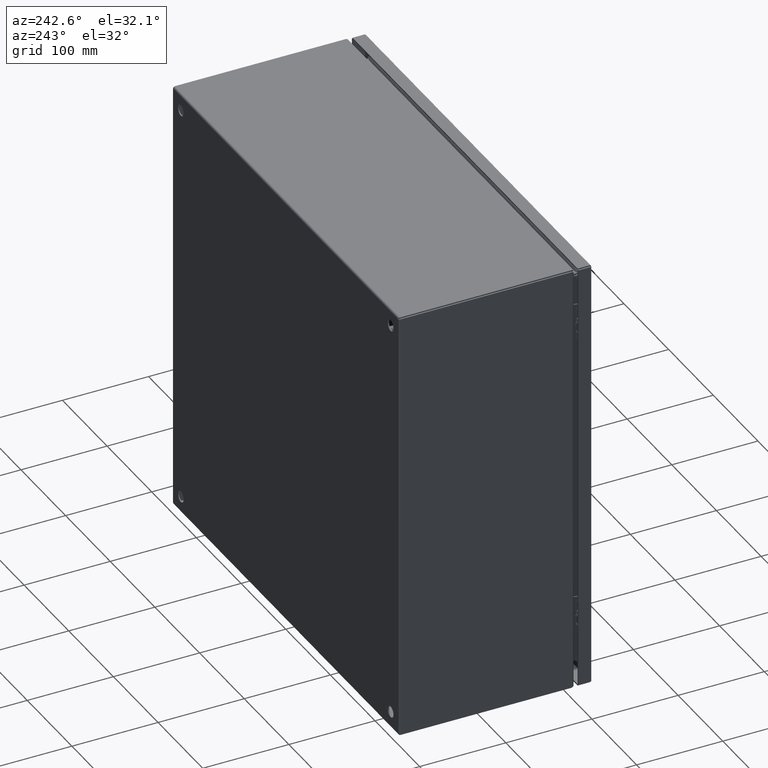
[diagram: clean part render]
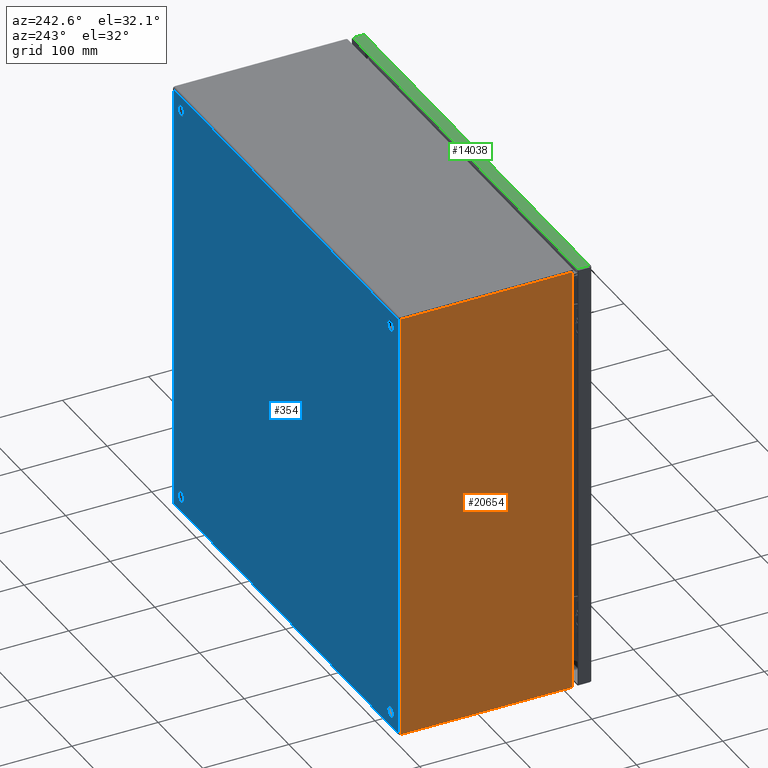
[diagram: same view with three faces highlighted in distinct colors, each labeled with its STEP entity id]
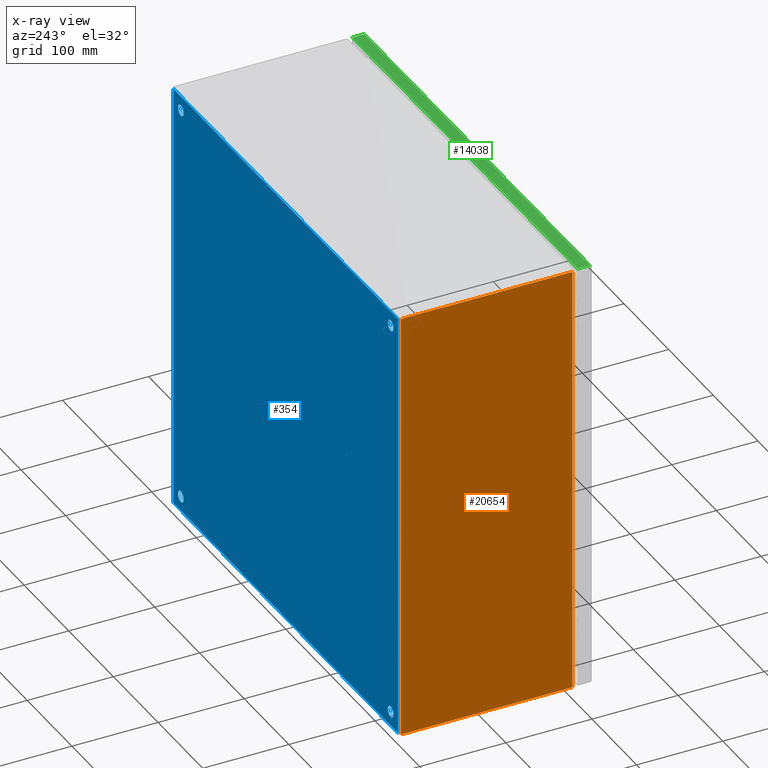
[diagram: x-ray of the same camera — body ghosted, the three highlighted faces saturated]
A machine part, auxiliary view with three faces highlighted in distinct colors.
The next image is the same camera in x-ray (body ghosted, the three faces saturated) — at least one of them is partly hidden behind the body in this view.
Their STEP definitions:

[orange] entity #20654 — the highlighted planar face has unit normal (1, -0, -0).
#82 = VECTOR ( 'NONE', #26476, 39.37007874015748143 ) ;
#808 = CARTESIAN_POINT ( 'NONE',  ( -10.00000000000000000, -0.05700000000000197270, 69.44150000000000489 ) ) ;
#1100 = ORIENTED_EDGE ( 'NONE', *, *, #4686, .F. ) ;
#1740 = CARTESIAN_POINT ( 'NONE',  ( -10.00000000000000178, -0.05700000000000197270, -9.942888644601415749 ) ) ;
#2675 = CARTESIAN_POINT ( 'NONE',  ( -9.999999999999998224, -0.08600000000000099232, 9.942888644601380221 ) ) ;
#2711 = CARTESIAN_POINT ( 'NONE',  ( -10.00000000000000000, -7.852421903868839870, -9.692888644601419301 ) ) ;
#4686 = EDGE_CURVE ( 'NONE', #7322, #31267, #16633, .T. ) ;
#4792 = DIRECTION ( 'NONE',  ( 2.771339582717989839E-16, 1.000000000000000000, 0.0000000000000000000 ) ) ;
#5652 = CARTESIAN_POINT ( 'NONE',  ( -10.00000000000000178, -7.914000000000000590, 69.44150000000000489 ) ) ;
#5762 = FACE_OUTER_BOUND ( 'NONE', #22858, .T. ) ;
#5946 = ORIENTED_EDGE ( 'NONE', *, *, #23322, .F. ) ;
#6816 = CARTESIAN_POINT ( 'NONE',  ( -10.00000000000000000, -7.852421903868828323, 9.942888644601397985 ) ) ;
#6991 = DIRECTION ( 'NONE',  ( 0.0000000000000000000, 1.000000000000000000, 0.0000000000000000000 ) ) ;
#7322 = VERTEX_POINT ( 'NONE', #16335 ) ;
#7592 = DIRECTION ( 'NONE',  ( 1.000000000000000000, -2.771339582717989839E-16, -1.573611165464029883E-17 ) ) ;
#8126 = CIRCLE ( 'NONE', #35520, 0.2499999999999998057 ) ;
#9599 = CARTESIAN_POINT ( 'NONE',  ( -10.00000000000000000, -0.05700000000000197270, 9.942888644601380221 ) ) ;
#9745 = AXIS2_PLACEMENT_3D ( 'NONE', #808, #7592, #16774 ) ;
#9856 = DIRECTION ( 'NONE',  ( 1.000000000000000000, -3.713031427099139786E-16, -1.573611165464029883E-17 ) ) ;
#13717 = PLANE ( 'NONE',  #9745 ) ;
#14278 = LINE ( 'NONE', #23259, #17930 ) ;
#16141 = VERTEX_POINT ( 'NONE', #26493 ) ;
#16335 = CARTESIAN_POINT ( 'NONE',  ( -10.00000000000000000, -7.852421903868830100, -9.942888644601397985 ) ) ;
#16633 = LINE ( 'NONE', #1740, #25231 ) ;
#16774 = DIRECTION ( 'NONE',  ( 2.771339582717989839E-16, 1.000000000000000000, 0.0000000000000000000 ) ) ;
#17322 = LINE ( 'NONE', #5652, #82 ) ;
#17930 = VECTOR ( 'NONE', #28775, 39.37007874015748143 ) ;
#18398 = LINE ( 'NONE', #9599, #25006 ) ;
#18622 = EDGE_CURVE ( 'NONE', #27066, #33191, #35905, .T. ) ;
#19903 = DIRECTION ( 'NONE',  ( 0.0000000000000000000, 1.000000000000000000, 0.0000000000000000000 ) ) ;
#20654 = ADVANCED_FACE ( 'NONE', ( #5762 ), #13717, .F. ) ;
#22858 = EDGE_LOOP ( 'NONE', ( #33914, #36446, #34629, #1100, #35885, #5946 ) ) ;
#23152 = DIRECTION ( 'NONE',  ( 1.000000000000000000, -3.713031427099139786E-16, -1.573611165464029883E-17 ) ) ;
#23259 = CARTESIAN_POINT ( 'NONE',  ( -9.999999999999998224, -0.08600000000000117273, -9.913999999999999702 ) ) ;
#23322 = EDGE_CURVE ( 'NONE', #33191, #16141, #17322, .T. ) ;
#25006 = VECTOR ( 'NONE', #30029, 39.37007874015748143 ) ;
#25231 = VECTOR ( 'NONE', #4792, 39.37007874015748143 ) ;
#26476 = DIRECTION ( 'NONE',  ( -1.573611165464029883E-17, 4.361010910657453997E-33, -1.000000000000000000 ) ) ;
#26493 = CARTESIAN_POINT ( 'NONE',  ( -10.00000000000000000, -7.914000000000002366, -9.935186267530042414 ) ) ;
#27066 = VERTEX_POINT ( 'NONE', #6816 ) ;
#27259 = CARTESIAN_POINT ( 'NONE',  ( -10.00000000000000000, -7.852421903868839870, 9.692888644601415749 ) ) ;
#27363 = EDGE_CURVE ( 'NONE', #16141, #7322, #8126, .T. ) ;
#28038 = AXIS2_PLACEMENT_3D ( 'NONE', #27259, #9856, #6991 ) ;
#28466 = CARTESIAN_POINT ( 'NONE',  ( -10.00000000000000000, -0.08600000000000000699, -9.942888644601415749 ) ) ;
#28758 = VERTEX_POINT ( 'NONE', #2675 ) ;
#28775 = DIRECTION ( 'NONE',  ( 0.0000000000000000000, 0.0000000000000000000, 1.000000000000000000 ) ) ;
#29598 = CARTESIAN_POINT ( 'NONE',  ( -10.00000000000000000, -7.914000000000000590, 9.935186267530042414 ) ) ;
#30029 = DIRECTION ( 'NONE',  ( -2.771339582717989839E-16, -1.000000000000000000, -0.0000000000000000000 ) ) ;
#31267 = VERTEX_POINT ( 'NONE', #28466 ) ;
#33191 = VERTEX_POINT ( 'NONE', #29598 ) ;
#33914 = ORIENTED_EDGE ( 'NONE', *, *, #18622, .F. ) ;
#34361 = EDGE_CURVE ( 'NONE', #28758, #27066, #18398, .T. ) ;
#34629 = ORIENTED_EDGE ( 'NONE', *, *, #35003, .F. ) ;
#35003 = EDGE_CURVE ( 'NONE', #31267, #28758, #14278, .T. ) ;
#35520 = AXIS2_PLACEMENT_3D ( 'NONE', #2711, #23152, #19903 ) ;
#35885 = ORIENTED_EDGE ( 'NONE', *, *, #27363, .F. ) ;
#35905 = CIRCLE ( 'NONE', #28038, 0.2499999999999998057 ) ;
#36446 = ORIENTED_EDGE ( 'NONE', *, *, #34361, .F. ) ;

[blue] entity #354 — the highlighted planar face has unit normal (0, -1, 0).
#90 = EDGE_LOOP ( 'NONE', ( #28183, #4549 ) ) ;
#188 = AXIS2_PLACEMENT_3D ( 'NONE', #24199, #12732, #29885 ) ;
#279 = EDGE_LOOP ( 'NONE', ( #34399, #11654, #19417, #22529 ) ) ;
#354 = ADVANCED_FACE ( 'NONE', ( #37236, #5393, #17066, #25114, #2543 ), #14196, .F. ) ;
#463 = AXIS2_PLACEMENT_3D ( 'NONE', #27336, #35861, #17982 ) ;
#508 = CARTESIAN_POINT ( 'NONE',  ( -9.942999999999999616, 0.0000000000000000000, 9.914000000000001478 ) ) ;
#636 = DIRECTION ( 'NONE',  ( 0.0000000000000000000, 0.0000000000000000000, 1.000000000000000000 ) ) ;
#1097 = ORIENTED_EDGE ( 'NONE', *, *, #30971, .F. ) ;
#1381 = CARTESIAN_POINT ( 'NONE',  ( -9.250000000000000000, 0.0000000000000000000, 9.000000000000000000 ) ) ;
#1616 = VERTEX_POINT ( 'NONE', #1381 ) ;
#2543 = FACE_BOUND ( 'NONE', #28124, .T. ) ;
#2830 = EDGE_CURVE ( 'NONE', #8909, #9756, #11760, .T. ) ;
#3713 = CARTESIAN_POINT ( 'NONE',  ( -9.250000000000000000, 0.0000000000000000000, -9.500000000000000000 ) ) ;
#3977 = AXIS2_PLACEMENT_3D ( 'NONE', #26393, #8991, #11121 ) ;
#4189 = DIRECTION ( 'NONE',  ( 0.0000000000000000000, 0.0000000000000000000, 1.000000000000000000 ) ) ;
#4213 = CARTESIAN_POINT ( 'NONE',  ( -9.942999999999999616, 0.0000000000000000000, -9.913999999999999702 ) ) ;
#4549 = ORIENTED_EDGE ( 'NONE', *, *, #8888, .F. ) ;
#4575 = DIRECTION ( 'NONE',  ( 0.0000000000000000000, 1.000000000000000000, 0.0000000000000000000 ) ) ;
#5142 = CARTESIAN_POINT ( 'NONE',  ( 9.914000000000001478, -6.155944433175433938E-16, 9.914000000000001478 ) ) ;
#5393 = FACE_OUTER_BOUND ( 'NONE', #279, .T. ) ;
#5814 = CARTESIAN_POINT ( 'NONE',  ( -9.913999999999999702, 0.0000000000000000000, 9.914000000000001478 ) ) ;
#5945 = CIRCLE ( 'NONE', #6531, 0.2499999999999998057 ) ;
#6531 = AXIS2_PLACEMENT_3D ( 'NONE', #33548, #4575, #4189 ) ;
#6995 = EDGE_CURVE ( 'NONE', #16544, #17304, #32633, .T. ) ;
#7169 = DIRECTION ( 'NONE',  ( 0.0000000000000000000, 1.000000000000000000, 0.0000000000000000000 ) ) ;
#7172 = VERTEX_POINT ( 'NONE', #29878 ) ;
#7339 = ORIENTED_EDGE ( 'NONE', *, *, #2830, .F. ) ;
#7745 = DIRECTION ( 'NONE',  ( 0.0000000000000000000, 0.0000000000000000000, 1.000000000000000000 ) ) ;
#8302 = DIRECTION ( 'NONE',  ( 0.0000000000000000000, 1.000000000000000000, 0.0000000000000000000 ) ) ;
#8350 = VERTEX_POINT ( 'NONE', #34274 ) ;
#8441 = DIRECTION ( 'NONE',  ( 0.0000000000000000000, -1.000000000000000000, 0.0000000000000000000 ) ) ;
#8884 = CARTESIAN_POINT ( 'NONE',  ( 9.250000000000000000, 0.0000000000000000000, -9.250000000000000000 ) ) ;
#8888 = EDGE_CURVE ( 'NONE', #1616, #24556, #10209, .T. ) ;
#8909 = VERTEX_POINT ( 'NONE', #27144 ) ;
#8991 = DIRECTION ( 'NONE',  ( 0.0000000000000000000, 1.000000000000000000, 0.0000000000000000000 ) ) ;
#9039 = EDGE_CURVE ( 'NONE', #13729, #7172, #5945, .T. ) ;
#9081 = AXIS2_PLACEMENT_3D ( 'NONE', #30280, #7169, #27052 ) ;
#9588 = ORIENTED_EDGE ( 'NONE', *, *, #35895, .F. ) ;
#9756 = VERTEX_POINT ( 'NONE', #3713 ) ;
#10209 = CIRCLE ( 'NONE', #463, 0.2499999999999998057 ) ;
#11121 = DIRECTION ( 'NONE',  ( 0.0000000000000000000, 0.0000000000000000000, 1.000000000000000000 ) ) ;
#11654 = ORIENTED_EDGE ( 'NONE', *, *, #36090, .F. ) ;
#11760 = CIRCLE ( 'NONE', #188, 0.2499999999999998057 ) ;
#11818 = ORIENTED_EDGE ( 'NONE', *, *, #9039, .F. ) ;
#11928 = AXIS2_PLACEMENT_3D ( 'NONE', #8884, #34820, #20564 ) ;
#12732 = DIRECTION ( 'NONE',  ( 0.0000000000000000000, 1.000000000000000000, 0.0000000000000000000 ) ) ;
#12805 = VECTOR ( 'NONE', #22662, 39.37007874015748143 ) ;
#12912 = CARTESIAN_POINT ( 'NONE',  ( -9.250000000000000000, 0.0000000000000000000, 9.500000000000000000 ) ) ;
#13004 = EDGE_CURVE ( 'NONE', #8350, #17977, #26938, .T. ) ;
#13123 = CIRCLE ( 'NONE', #3977, 0.2499999999999998057 ) ;
#13729 = VERTEX_POINT ( 'NONE', #14826 ) ;
#14094 = VERTEX_POINT ( 'NONE', #5142 ) ;
#14196 = PLANE ( 'NONE',  #25144 ) ;
#14251 = CARTESIAN_POINT ( 'NONE',  ( 9.914000000000001478, 0.0000000000000000000, -9.942999999999999616 ) ) ;
#14826 = CARTESIAN_POINT ( 'NONE',  ( 9.250000000000000000, 0.0000000000000000000, 9.000000000000000000 ) ) ;
#15530 = DIRECTION ( 'NONE',  ( 0.0000000000000000000, 1.000000000000000000, 0.0000000000000000000 ) ) ;
#16071 = LINE ( 'NONE', #30565, #36232 ) ;
#16332 = EDGE_CURVE ( 'NONE', #24556, #1616, #17651, .T. ) ;
#16544 = VERTEX_POINT ( 'NONE', #26629 ) ;
#16794 = VECTOR ( 'NONE', #22025, 39.37007874015748143 ) ;
#17066 = FACE_BOUND ( 'NONE', #90, .T. ) ;
#17304 = VERTEX_POINT ( 'NONE', #26306 ) ;
#17651 = CIRCLE ( 'NONE', #9081, 0.2499999999999998057 ) ;
#17806 = VERTEX_POINT ( 'NONE', #5814 ) ;
#17977 = VERTEX_POINT ( 'NONE', #27016 ) ;
#17982 = DIRECTION ( 'NONE',  ( 0.0000000000000000000, 0.0000000000000000000, 1.000000000000000000 ) ) ;
#18671 = EDGE_CURVE ( 'NONE', #17977, #14094, #28191, .T. ) ;
#18759 = EDGE_CURVE ( 'NONE', #7172, #13729, #26214, .T. ) ;
#19128 = EDGE_LOOP ( 'NONE', ( #9588, #29533 ) ) ;
#19417 = ORIENTED_EDGE ( 'NONE', *, *, #36569, .F. ) ;
#20564 = DIRECTION ( 'NONE',  ( 0.0000000000000000000, 0.0000000000000000000, 1.000000000000000000 ) ) ;
#22025 = DIRECTION ( 'NONE',  ( -1.000000000000000000, -0.0000000000000000000, -0.0000000000000000000 ) ) ;
#22074 = VECTOR ( 'NONE', #24094, 39.37007874015748143 ) ;
#22529 = ORIENTED_EDGE ( 'NONE', *, *, #18671, .F. ) ;
#22662 = DIRECTION ( 'NONE',  ( -0.0000000000000000000, 0.0000000000000000000, 1.000000000000000000 ) ) ;
#24094 = DIRECTION ( 'NONE',  ( 1.000000000000000000, 0.0000000000000000000, 0.0000000000000000000 ) ) ;
#24199 = CARTESIAN_POINT ( 'NONE',  ( -9.250000000000000000, 0.0000000000000000000, -9.250000000000000000 ) ) ;
#24556 = VERTEX_POINT ( 'NONE', #12912 ) ;
#25114 = FACE_BOUND ( 'NONE', #19128, .T. ) ;
#25144 = AXIS2_PLACEMENT_3D ( 'NONE', #34574, #8441, #33827 ) ;
#26214 = CIRCLE ( 'NONE', #31070, 0.2499999999999998057 ) ;
#26306 = CARTESIAN_POINT ( 'NONE',  ( 9.250000000000000000, 0.0000000000000000000, -9.000000000000000000 ) ) ;
#26393 = CARTESIAN_POINT ( 'NONE',  ( 9.250000000000000000, 0.0000000000000000000, -9.250000000000000000 ) ) ;
#26593 = CARTESIAN_POINT ( 'NONE',  ( -9.250000000000000000, 0.0000000000000000000, -9.250000000000000000 ) ) ;
#26629 = CARTESIAN_POINT ( 'NONE',  ( 9.250000000000000000, 0.0000000000000000000, -9.500000000000000000 ) ) ;
#26840 = LINE ( 'NONE', #508, #16794 ) ;
#26938 = LINE ( 'NONE', #4213, #22074 ) ;
#27016 = CARTESIAN_POINT ( 'NONE',  ( 9.914000000000001478, -6.155944433175433938E-16, -9.913999999999999702 ) ) ;
#27052 = DIRECTION ( 'NONE',  ( 0.0000000000000000000, 0.0000000000000000000, 1.000000000000000000 ) ) ;
#27144 = CARTESIAN_POINT ( 'NONE',  ( -9.250000000000000000, 0.0000000000000000000, -9.000000000000000000 ) ) ;
#27307 = EDGE_LOOP ( 'NONE', ( #7339, #1097 ) ) ;
#27336 = CARTESIAN_POINT ( 'NONE',  ( -9.250000000000000000, 0.0000000000000000000, 9.250000000000000000 ) ) ;
#27930 = AXIS2_PLACEMENT_3D ( 'NONE', #26593, #15530, #636 ) ;
#28124 = EDGE_LOOP ( 'NONE', ( #31792, #11818 ) ) ;
#28183 = ORIENTED_EDGE ( 'NONE', *, *, #16332, .F. ) ;
#28191 = LINE ( 'NONE', #14251, #12805 ) ;
#29533 = ORIENTED_EDGE ( 'NONE', *, *, #6995, .F. ) ;
#29878 = CARTESIAN_POINT ( 'NONE',  ( 9.250000000000000000, 0.0000000000000000000, 9.500000000000000000 ) ) ;
#29885 = DIRECTION ( 'NONE',  ( 0.0000000000000000000, 0.0000000000000000000, 1.000000000000000000 ) ) ;
#30280 = CARTESIAN_POINT ( 'NONE',  ( -9.250000000000000000, 0.0000000000000000000, 9.250000000000000000 ) ) ;
#30565 = CARTESIAN_POINT ( 'NONE',  ( -9.913999999999999702, 0.0000000000000000000, -9.942999999999999616 ) ) ;
#30971 = EDGE_CURVE ( 'NONE', #9756, #8909, #32174, .T. ) ;
#31070 = AXIS2_PLACEMENT_3D ( 'NONE', #34433, #8302, #7745 ) ;
#31792 = ORIENTED_EDGE ( 'NONE', *, *, #18759, .F. ) ;
#32174 = CIRCLE ( 'NONE', #27930, 0.2499999999999998057 ) ;
#32633 = CIRCLE ( 'NONE', #11928, 0.2499999999999998057 ) ;
#33548 = CARTESIAN_POINT ( 'NONE',  ( 9.250000000000000000, 0.0000000000000000000, 9.250000000000000000 ) ) ;
#33827 = DIRECTION ( 'NONE',  ( 0.0000000000000000000, -0.0000000000000000000, -1.000000000000000000 ) ) ;
#34274 = CARTESIAN_POINT ( 'NONE',  ( -9.913999999999999702, 0.0000000000000000000, -9.913999999999999702 ) ) ;
#34399 = ORIENTED_EDGE ( 'NONE', *, *, #13004, .F. ) ;
#34433 = CARTESIAN_POINT ( 'NONE',  ( 9.250000000000000000, 0.0000000000000000000, 9.250000000000000000 ) ) ;
#34574 = CARTESIAN_POINT ( 'NONE',  ( -9.942999999999999616, 0.0000000000000000000, -9.942999999999999616 ) ) ;
#34820 = DIRECTION ( 'NONE',  ( 0.0000000000000000000, 1.000000000000000000, 0.0000000000000000000 ) ) ;
#35861 = DIRECTION ( 'NONE',  ( 0.0000000000000000000, 1.000000000000000000, 0.0000000000000000000 ) ) ;
#35895 = EDGE_CURVE ( 'NONE', #17304, #16544, #13123, .T. ) ;
#36090 = EDGE_CURVE ( 'NONE', #17806, #8350, #16071, .T. ) ;
#36232 = VECTOR ( 'NONE', #36443, 39.37007874015748143 ) ;
#36443 = DIRECTION ( 'NONE',  ( 0.0000000000000000000, -0.0000000000000000000, -1.000000000000000000 ) ) ;
#36569 = EDGE_CURVE ( 'NONE', #14094, #17806, #26840, .T. ) ;
#37236 = FACE_BOUND ( 'NONE', #27307, .T. ) ;

[green] entity #14038 — the highlighted planar face has unit normal (0, 0, 1).
#359 = ORIENTED_EDGE ( 'NONE', *, *, #25561, .T. ) ;
#2193 = EDGE_CURVE ( 'NONE', #8424, #35835, #2520, .T. ) ;
#2520 = LINE ( 'NONE', #26021, #34851 ) ;
#2673 = CARTESIAN_POINT ( 'NONE',  ( -9.924921259842529153, -8.775000000000002132, 9.984000000000003539 ) ) ;
#2814 = CARTESIAN_POINT ( 'NONE',  ( -9.924921259842529153, -8.196999999999999176, 9.984000000000003539 ) ) ;
#6856 = VECTOR ( 'NONE', #31477, 39.37007874015748143 ) ;
#7248 = PLANE ( 'NONE',  #22046 ) ;
#7959 = DIRECTION ( 'NONE',  ( -1.000000000000000000, -3.749151804555340178E-33, -6.123031769111889989E-17 ) ) ;
#8182 = CARTESIAN_POINT ( 'NONE',  ( 9.900999999999990919, -8.196999999999999176, 9.984000000000003539 ) ) ;
#8424 = VERTEX_POINT ( 'NONE', #15932 ) ;
#13880 = ORIENTED_EDGE ( 'NONE', *, *, #2193, .T. ) ;
#13911 = CARTESIAN_POINT ( 'NONE',  ( -9.896000000000007901, -8.736000000000002430, 9.984000000000001762 ) ) ;
#14038 = ADVANCED_FACE ( 'NONE', ( #21802 ), #7248, .T. ) ;
#14729 = DIRECTION ( 'NONE',  ( 0.0000000000000000000, 1.000000000000000000, -0.0000000000000000000 ) ) ;
#15822 = EDGE_LOOP ( 'NONE', ( #35711, #13880, #35889, #359 ) ) ;
#15932 = CARTESIAN_POINT ( 'NONE',  ( 9.929921259842510395, -8.736000000000000654, 9.984000000000003539 ) ) ;
#16873 = VECTOR ( 'NONE', #7959, 39.37007874015748143 ) ;
#16998 = DIRECTION ( 'NONE',  ( -1.000000000000000000, -0.0000000000000000000, -0.0000000000000000000 ) ) ;
#17496 = VERTEX_POINT ( 'NONE', #21721 ) ;
#18920 = CARTESIAN_POINT ( 'NONE',  ( -9.896000000000007901, -8.775000000000002132, 9.984000000000003539 ) ) ;
#19119 = VECTOR ( 'NONE', #16998, 39.37007874015748143 ) ;
#19670 = DIRECTION ( 'NONE',  ( 0.0000000000000000000, 6.123031769111889989E-17, 1.000000000000000000 ) ) ;
#21721 = CARTESIAN_POINT ( 'NONE',  ( -9.924921259842529153, -8.736000000000000654, 9.984000000000001762 ) ) ;
#21802 = FACE_OUTER_BOUND ( 'NONE', #15822, .T. ) ;
#22046 = AXIS2_PLACEMENT_3D ( 'NONE', #18920, #19670, #22735 ) ;
#22735 = DIRECTION ( 'NONE',  ( 0.0000000000000000000, -1.000000000000000000, 6.123031769111889989E-17 ) ) ;
#22979 = CARTESIAN_POINT ( 'NONE',  ( 9.929921259842510395, -8.196999999999999176, 9.984000000000003539 ) ) ;
#25561 = EDGE_CURVE ( 'NONE', #29244, #17496, #34874, .T. ) ;
#26021 = CARTESIAN_POINT ( 'NONE',  ( 9.929921259842510395, -8.775000000000002132, 9.984000000000003539 ) ) ;
#27635 = EDGE_CURVE ( 'NONE', #35835, #29244, #37170, .T. ) ;
#28220 = LINE ( 'NONE', #13911, #16873 ) ;
#29176 = EDGE_CURVE ( 'NONE', #8424, #17496, #28220, .T. ) ;
#29244 = VERTEX_POINT ( 'NONE', #2814 ) ;
#31477 = DIRECTION ( 'NONE',  ( 0.0000000000000000000, -1.000000000000000000, -0.0000000000000000000 ) ) ;
#34851 = VECTOR ( 'NONE', #14729, 39.37007874015748143 ) ;
#34874 = LINE ( 'NONE', #2673, #6856 ) ;
#35711 = ORIENTED_EDGE ( 'NONE', *, *, #29176, .F. ) ;
#35835 = VERTEX_POINT ( 'NONE', #22979 ) ;
#35889 = ORIENTED_EDGE ( 'NONE', *, *, #27635, .T. ) ;
#37170 = LINE ( 'NONE', #8182, #19119 ) ;